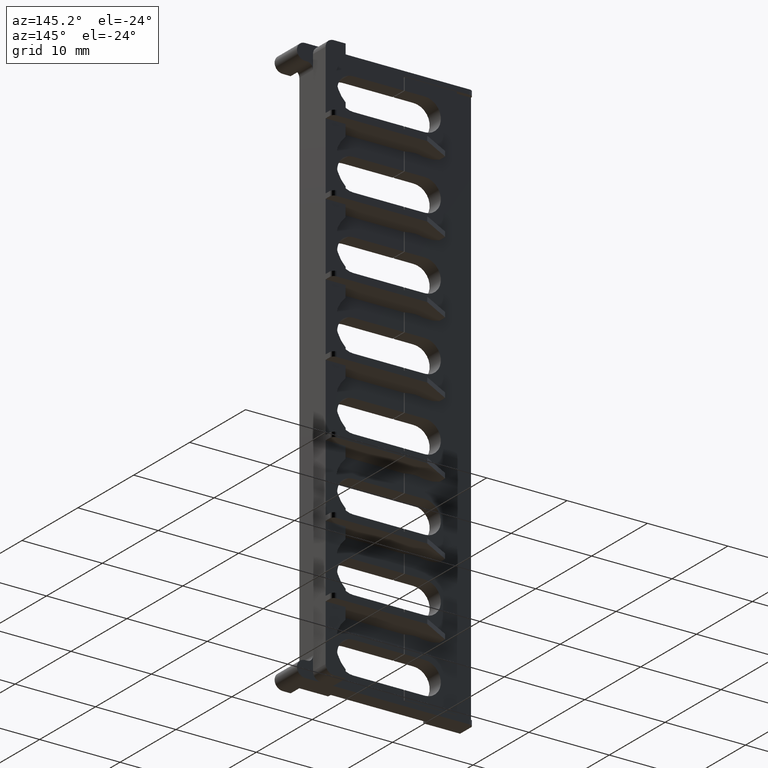
[diagram: clean part render]
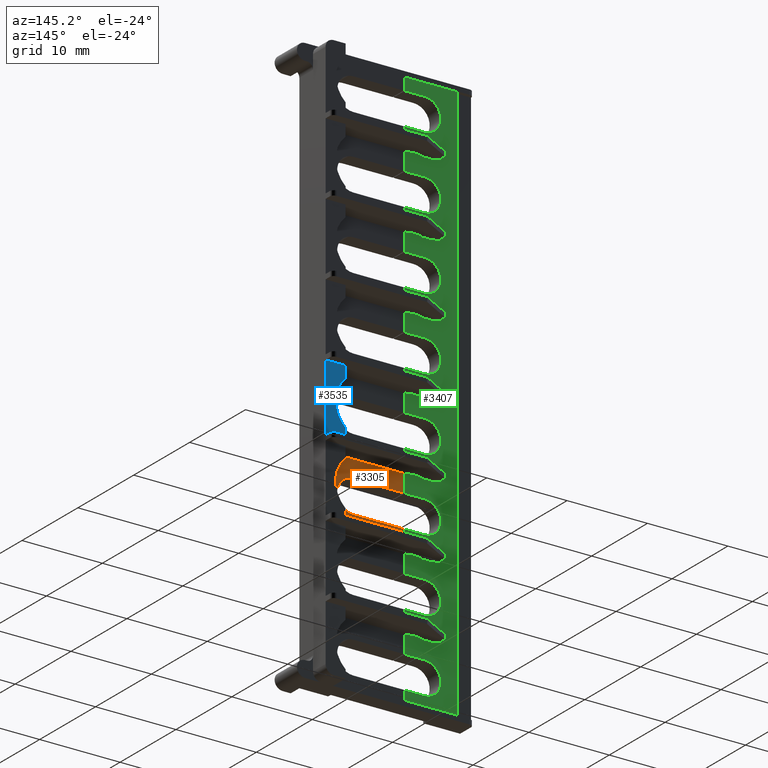
[diagram: same view with three faces highlighted in distinct colors, each labeled with its STEP entity id]
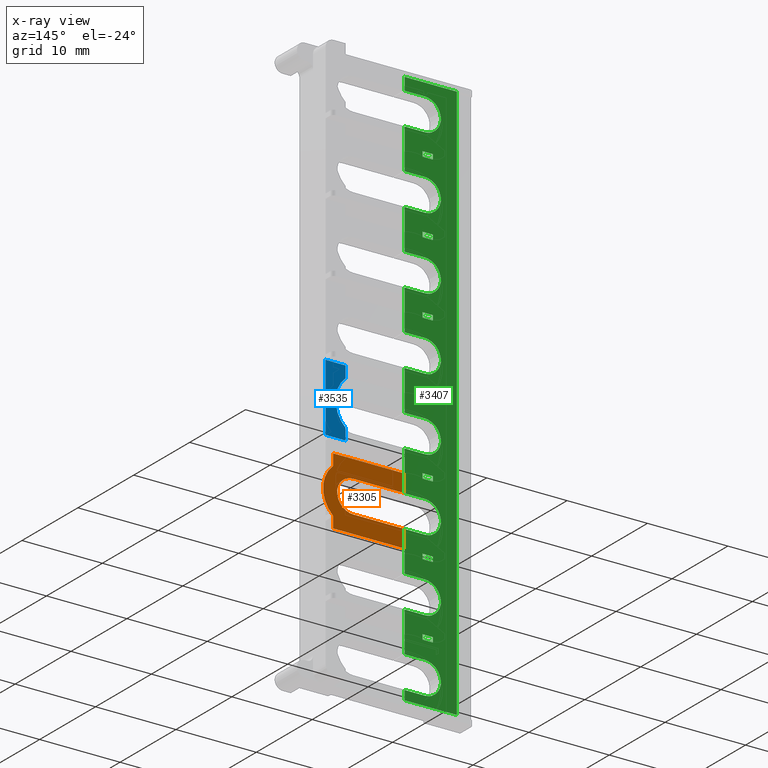
[diagram: x-ray of the same camera — body ghosted, the three highlighted faces saturated]
A machine part, auxiliary view with three faces highlighted in distinct colors.
The next image is the same camera in x-ray (body ghosted, the three faces saturated) — at least one of them is partly hidden behind the body in this view.
Their STEP definitions:

[orange] entity #3305 — the highlighted planar face has unit normal (-0, 1, -0).
#284 = AXIS2_PLACEMENT_3D ( 'NONE', #5922, #5903, #5923 ) ;
#856 = VERTEX_POINT ( 'NONE', #6675 ) ;
#1108 = DIRECTION ( 'NONE',  ( -0.0000000000000000000, -2.733577826868160200E-020, -1.000000000000000000 ) ) ;
#1123 = CARTESIAN_POINT ( 'NONE',  ( 461.6252094327940100, 146.0878730676890000, 9.600000000000056500 ) ) ;
#1200 = LINE ( 'NONE', #1123, #5444 ) ;
#1331 = LINE ( 'NONE', #1340, #5496 ) ;
#1340 = CARTESIAN_POINT ( 'NONE',  ( 452.8252094327941700, 146.0878730676890000, 49.39783776548824800 ) ) ;
#1425 = DIRECTION ( 'NONE',  ( 3.492165866658390800E-015, -0.0000000000000000000, -1.000000000000000000 ) ) ;
#1429 = LINE ( 'NONE', #1522, #5477 ) ;
#1433 = DIRECTION ( 'NONE',  ( -1.000000000000000000, 0.0000000000000000000, -3.492165866658340700E-015 ) ) ;
#1442 = LINE ( 'NONE', #1498, #5470 ) ;
#1446 = DIRECTION ( 'NONE',  ( 1.000000000000000000, 0.0000000000000000000, 0.0000000000000000000 ) ) ;
#1498 = CARTESIAN_POINT ( 'NONE',  ( 441.2545856383292200, 146.0878730676890000, 18.19999999999999900 ) ) ;
#1522 = CARTESIAN_POINT ( 'NONE',  ( 463.6252094327940100, 146.0878730676890000, 26.59999999999999800 ) ) ;
#1548 = CARTESIAN_POINT ( 'NONE',  ( 459.1252094327940100, 146.0878730676890000, 22.39999999999999900 ) ) ;
#1554 = CARTESIAN_POINT ( 'NONE',  ( 459.1252094327940100, 146.0878730676890000, 20.40000000000000200 ) ) ;
#1570 = DIRECTION ( 'NONE',  ( 2.530253133731424900E-033, -1.000000000000000000, 2.733577826868160200E-020 ) ) ;
#1574 = LINE ( 'NONE', #1554, #5538 ) ;
#1576 = CARTESIAN_POINT ( 'NONE',  ( 452.8252094327941700, 146.0878730676890000, 40.39783776548824800 ) ) ;
#1601 = DIRECTION ( 'NONE',  ( 0.0000000000000000000, 0.0000000000000000000, 1.000000000000000000 ) ) ;
#1617 = DIRECTION ( 'NONE',  ( 1.000000000000000000, -0.0000000000000000000, 3.492165866658340700E-015 ) ) ;
#1621 = LINE ( 'NONE', #1576, #5552 ) ;
#1626 = DIRECTION ( 'NONE',  ( 3.492165866658390800E-015, -0.0000000000000000000, -1.000000000000000000 ) ) ;
#1649 = LINE ( 'NONE', #1651, #5535 ) ;
#1651 = CARTESIAN_POINT ( 'NONE',  ( 450.1252094327940700, 146.0878730676890000, 24.39999999999999900 ) ) ;
#1653 = DIRECTION ( 'NONE',  ( -1.000000000000000000, -0.0000000000000000000, -3.492165866658340700E-015 ) ) ;
#1656 = CARTESIAN_POINT ( 'NONE',  ( 459.1252094327940100, 146.0878730676890000, 22.39999999999999900 ) ) ;
#1679 = DIRECTION ( 'NONE',  ( 0.0000000000000000000, 0.0000000000000000000, 1.000000000000000000 ) ) ;
#1735 = DIRECTION ( 'NONE',  ( -2.530253133731424900E-033, 1.000000000000000000, -2.733577826868160200E-020 ) ) ;
#2203 = EDGE_LOOP ( 'NONE', ( #7374, #7384, #7401, #7367, #7363, #7375, #7342, #7369, #7387, #7370 ) ) ;
#2499 = VERTEX_POINT ( 'NONE', #5803 ) ;
#2513 = VERTEX_POINT ( 'NONE', #5777 ) ;
#2515 = VERTEX_POINT ( 'NONE', #5811 ) ;
#2516 = VERTEX_POINT ( 'NONE', #5792 ) ;
#2521 = VERTEX_POINT ( 'NONE', #5817 ) ;
#2532 = VERTEX_POINT ( 'NONE', #5851 ) ;
#2540 = VERTEX_POINT ( 'NONE', #5882 ) ;
#2541 = VERTEX_POINT ( 'NONE', #5849 ) ;
#2573 = VERTEX_POINT ( 'NONE', #5860 ) ;
#2870 = LINE ( 'NONE', #2890, #5744 ) ;
#2882 = DIRECTION ( 'NONE',  ( -0.0000000000000000000, -2.733577826868160200E-020, -1.000000000000000000 ) ) ;
#2890 = CARTESIAN_POINT ( 'NONE',  ( 461.6252094327940700, 146.0878730676890000, 9.600000000000056500 ) ) ;
#3305 = ADVANCED_FACE ( 'NONE', ( #5891 ), #5888, .T. ) ;
#4196 = EDGE_CURVE ( 'NONE', #2499, #2532, #2870, .T. ) ;
#4262 = EDGE_CURVE ( 'NONE', #2521, #2513, #1200, .T. ) ;
#4291 = EDGE_CURVE ( 'NONE', #2516, #2540, #1331, .T. ) ;
#4310 = EDGE_CURVE ( 'NONE', #2521, #2516, #1429, .T. ) ;
#4317 = EDGE_CURVE ( 'NONE', #2515, #2532, #1442, .T. ) ;
#5444 = VECTOR ( 'NONE', #1108, 1000.000000000000000 ) ;
#5470 = VECTOR ( 'NONE', #1446, 1000.000000000000000 ) ;
#5477 = VECTOR ( 'NONE', #1433, 1000.000000000000000 ) ;
#5496 = VECTOR ( 'NONE', #1425, 1000.000000000000000 ) ;
#5525 = CIRCLE ( 'NONE', #5559, 1.999999999999998200 ) ;
#5535 = VECTOR ( 'NONE', #1653, 1000.000000000000000 ) ;
#5537 = CIRCLE ( 'NONE', #5556, 3.750000000000000000 ) ;
#5538 = VECTOR ( 'NONE', #1617, 1000.000000000000000 ) ;
#5552 = VECTOR ( 'NONE', #1626, 1000.000000000000000 ) ;
#5556 = AXIS2_PLACEMENT_3D ( 'NONE', #1656, #1735, #1679 ) ;
#5559 = AXIS2_PLACEMENT_3D ( 'NONE', #1548, #1570, #1601 ) ;
#5744 = VECTOR ( 'NONE', #2882, 1000.000000000000000 ) ;
#5777 = CARTESIAN_POINT ( 'NONE',  ( 461.6252094327939500, 146.0878730676890000, 25.19508497187475300 ) ) ;
#5792 = CARTESIAN_POINT ( 'NONE',  ( 452.8252094327941100, 146.0878730676890000, 26.59999999999996900 ) ) ;
#5803 = CARTESIAN_POINT ( 'NONE',  ( 461.6252094327940700, 146.0878730676890000, 19.60491502812531200 ) ) ;
#5811 = CARTESIAN_POINT ( 'NONE',  ( 452.8252094327941100, 146.0878730676890000, 18.20000000000000600 ) ) ;
#5817 = CARTESIAN_POINT ( 'NONE',  ( 461.6252094327940100, 146.0878730676890000, 26.59999999999998400 ) ) ;
#5849 = CARTESIAN_POINT ( 'NONE',  ( 452.8252094327941700, 146.0878730676890000, 20.39999999999998100 ) ) ;
#5851 = CARTESIAN_POINT ( 'NONE',  ( 461.6252094327940100, 146.0878730676890000, 18.19999999999999900 ) ) ;
#5860 = CARTESIAN_POINT ( 'NONE',  ( 459.1252094327940100, 146.0878730676890000, 20.40000000000000200 ) ) ;
#5882 = CARTESIAN_POINT ( 'NONE',  ( 452.8252094327941700, 146.0878730676890000, 24.40000000000000900 ) ) ;
#5888 = PLANE ( 'NONE',  #284 ) ;
#5891 = FACE_OUTER_BOUND ( 'NONE', #2203, .T. ) ;
#5903 = DIRECTION ( 'NONE',  ( -2.530253133731424900E-033, 1.000000000000000000, -2.733577826868160200E-020 ) ) ;
#5922 = CARTESIAN_POINT ( 'NONE',  ( 457.5799457489669600, 146.0878730676890000, 9.600000000000056500 ) ) ;
#5923 = DIRECTION ( 'NONE',  ( 0.0000000000000000000, 2.733577826868160200E-020, 1.000000000000000000 ) ) ;
#6482 = EDGE_CURVE ( 'NONE', #2573, #856, #5525, .T. ) ;
#6487 = EDGE_CURVE ( 'NONE', #2541, #2573, #1574, .T. ) ;
#6493 = EDGE_CURVE ( 'NONE', #2541, #2515, #1621, .T. ) ;
#6499 = EDGE_CURVE ( 'NONE', #2513, #2499, #5537, .T. ) ;
#6527 = EDGE_CURVE ( 'NONE', #856, #2540, #1649, .T. ) ;
#6675 = CARTESIAN_POINT ( 'NONE',  ( 459.1252094327940100, 146.0878730676890000, 24.40000000000001300 ) ) ;
#7342 = ORIENTED_EDGE ( 'NONE', *, *, #4317, .F. ) ;
#7363 = ORIENTED_EDGE ( 'NONE', *, *, #6499, .T. ) ;
#7367 = ORIENTED_EDGE ( 'NONE', *, *, #4262, .T. ) ;
#7369 = ORIENTED_EDGE ( 'NONE', *, *, #6493, .F. ) ;
#7370 = ORIENTED_EDGE ( 'NONE', *, *, #6482, .T. ) ;
#7374 = ORIENTED_EDGE ( 'NONE', *, *, #6527, .T. ) ;
#7375 = ORIENTED_EDGE ( 'NONE', *, *, #4196, .T. ) ;
#7384 = ORIENTED_EDGE ( 'NONE', *, *, #4291, .F. ) ;
#7387 = ORIENTED_EDGE ( 'NONE', *, *, #6487, .T. ) ;
#7401 = ORIENTED_EDGE ( 'NONE', *, *, #4310, .F. ) ;

[blue] entity #3535 — the highlighted planar face has unit normal (0, -1, 0).
#74 = VECTOR ( 'NONE', #8397, 1000.000000000000000 ) ;
#536 = AXIS2_PLACEMENT_3D ( 'NONE', #4740, #4726, #4721 ) ;
#664 = VECTOR ( 'NONE', #5210, 1000.000000000000000 ) ;
#679 = VECTOR ( 'NONE', #5189, 1000.000000000000000 ) ;
#702 = CIRCLE ( 'NONE', #703, 3.750000000000003600 ) ;
#703 = AXIS2_PLACEMENT_3D ( 'NONE', #7973, #7991, #7984 ) ;
#922 = VERTEX_POINT ( 'NONE', #6723 ) ;
#937 = VERTEX_POINT ( 'NONE', #6724 ) ;
#1020 = LINE ( 'NONE', #1027, #5433 ) ;
#1027 = CARTESIAN_POINT ( 'NONE',  ( 461.6252094327940100, 148.3378730676890000, 28.60491502812533700 ) ) ;
#1030 = DIRECTION ( 'NONE',  ( -3.492165866658390800E-015, -0.0000000000000000000, 1.000000000000000000 ) ) ;
#2361 = ORIENTED_EDGE ( 'NONE', *, *, #3734, .F. ) ;
#2364 = ORIENTED_EDGE ( 'NONE', *, *, #4254, .T. ) ;
#2443 = VERTEX_POINT ( 'NONE', #7018 ) ;
#2502 = VERTEX_POINT ( 'NONE', #5789 ) ;
#2518 = VERTEX_POINT ( 'NONE', #5805 ) ;
#2530 = VERTEX_POINT ( 'NONE', #5853 ) ;
#2910 = CARTESIAN_POINT ( 'NONE',  ( 461.6252094327940100, 148.3378730676890000, 37.60491502812535500 ) ) ;
#2914 = DIRECTION ( 'NONE',  ( -3.492165866658390800E-015, -0.0000000000000000000, 1.000000000000000000 ) ) ;
#2918 = LINE ( 'NONE', #2910, #5451 ) ;
#3535 = ADVANCED_FACE ( 'NONE', ( #4720 ), #4724, .F. ) ;
#3673 = EDGE_CURVE ( 'NONE', #2518, #937, #5164, .T. ) ;
#3676 = EDGE_CURVE ( 'NONE', #922, #2502, #5217, .T. ) ;
#3734 = EDGE_CURVE ( 'NONE', #2443, #2530, #702, .T. ) ;
#3859 = EDGE_CURVE ( 'NONE', #922, #937, #8374, .T. ) ;
#4217 = EDGE_CURVE ( 'NONE', #2443, #2502, #2918, .T. ) ;
#4254 = EDGE_CURVE ( 'NONE', #2518, #2530, #1020, .T. ) ;
#4720 = FACE_OUTER_BOUND ( 'NONE', #6630, .T. ) ;
#4721 = DIRECTION ( 'NONE',  ( 0.0000000000000000000, -2.733577826868160200E-020, -1.000000000000000000 ) ) ;
#4724 = PLANE ( 'NONE',  #536 ) ;
#4726 = DIRECTION ( 'NONE',  ( 2.530253133731424900E-033, -1.000000000000000000, 2.733577826868160200E-020 ) ) ;
#4740 = CARTESIAN_POINT ( 'NONE',  ( 459.1252094327940100, 148.3378730676890000, 49.39999999999999900 ) ) ;
#5164 = LINE ( 'NONE', #5221, #679 ) ;
#5189 = DIRECTION ( 'NONE',  ( 1.000000000000000000, 2.530253133731424900E-033, -6.916643862731900400E-053 ) ) ;
#5210 = DIRECTION ( 'NONE',  ( -1.000000000000000000, -2.530253133731424900E-033, 6.916643862731900400E-053 ) ) ;
#5212 = CARTESIAN_POINT ( 'NONE',  ( 459.1252094327940100, 148.3378730676890000, 35.60000000000000100 ) ) ;
#5217 = LINE ( 'NONE', #5212, #664 ) ;
#5221 = CARTESIAN_POINT ( 'NONE',  ( 459.1252094327940100, 148.3378730676890000, 27.20000000000006000 ) ) ;
#5433 = VECTOR ( 'NONE', #1030, 1000.000000000000000 ) ;
#5451 = VECTOR ( 'NONE', #2914, 1000.000000000000000 ) ;
#5789 = CARTESIAN_POINT ( 'NONE',  ( 461.6252094327940100, 148.3378730676890000, 35.60000000000000100 ) ) ;
#5805 = CARTESIAN_POINT ( 'NONE',  ( 461.6252094327940100, 148.3378730676890000, 27.20000000000003500 ) ) ;
#5853 = CARTESIAN_POINT ( 'NONE',  ( 461.6252094327940700, 148.3378730676890000, 28.60491502812527600 ) ) ;
#6630 = EDGE_LOOP ( 'NONE', ( #2364, #2361, #7095, #7098, #7097, #7096 ) ) ;
#6723 = CARTESIAN_POINT ( 'NONE',  ( 464.1252094327938900, 148.3378730676890000, 35.60000000000000100 ) ) ;
#6724 = CARTESIAN_POINT ( 'NONE',  ( 464.1252094327940100, 148.3378730676890000, 27.20000000000000300 ) ) ;
#7018 = CARTESIAN_POINT ( 'NONE',  ( 461.6252094327939500, 148.3378730676890000, 34.19508497187475600 ) ) ;
#7095 = ORIENTED_EDGE ( 'NONE', *, *, #4217, .T. ) ;
#7096 = ORIENTED_EDGE ( 'NONE', *, *, #3673, .F. ) ;
#7097 = ORIENTED_EDGE ( 'NONE', *, *, #3859, .T. ) ;
#7098 = ORIENTED_EDGE ( 'NONE', *, *, #3676, .F. ) ;
#7973 = CARTESIAN_POINT ( 'NONE',  ( 459.1252094327940100, 148.3378730676890000, 31.39999999999999900 ) ) ;
#7984 = DIRECTION ( 'NONE',  ( 0.0000000000000000000, 0.0000000000000000000, 1.000000000000000000 ) ) ;
#7991 = DIRECTION ( 'NONE',  ( -2.530253133731424900E-033, 1.000000000000000000, -2.733577826868160200E-020 ) ) ;
#8362 = CARTESIAN_POINT ( 'NONE',  ( 464.1252094327940100, 148.3378730676890000, -1.045883411433843800 ) ) ;
#8374 = LINE ( 'NONE', #8362, #74 ) ;
#8397 = DIRECTION ( 'NONE',  ( 3.492165866658390800E-015, -0.0000000000000000000, -1.000000000000000000 ) ) ;

[green] entity #3407 — the highlighted planar face has unit normal (-0, 1, -0).
#392 = AXIS2_PLACEMENT_3D ( 'NONE', #6403, #6425, #6448 ) ;
#496 = CIRCLE ( 'NONE', #506, 2.000000000000001800 ) ;
#506 = AXIS2_PLACEMENT_3D ( 'NONE', #4884, #4897, #4898 ) ;
#514 = VECTOR ( 'NONE', #4839, 1000.000000000000000 ) ;
#543 = VECTOR ( 'NONE', #4856, 1000.000000000000000 ) ;
#558 = VECTOR ( 'NONE', #5041, 1000.000000000000000 ) ;
#559 = AXIS2_PLACEMENT_3D ( 'NONE', #5023, #5025, #5031 ) ;
#560 = AXIS2_PLACEMENT_3D ( 'NONE', #5026, #5015, #5033 ) ;
#564 = VECTOR ( 'NONE', #5012, 1000.000000000000000 ) ;
#573 = VECTOR ( 'NONE', #4972, 1000.000000000000000 ) ;
#574 = CIRCLE ( 'NONE', #560, 2.000000000000000000 ) ;
#578 = VECTOR ( 'NONE', #4928, 1000.000000000000000 ) ;
#581 = AXIS2_PLACEMENT_3D ( 'NONE', #5027, #5036, #5004 ) ;
#588 = VECTOR ( 'NONE', #5045, 1000.000000000000000 ) ;
#590 = VECTOR ( 'NONE', #4910, 1000.000000000000000 ) ;
#595 = VECTOR ( 'NONE', #5021, 1000.000000000000000 ) ;
#600 = VECTOR ( 'NONE', #5081, 1000.000000000000000 ) ;
#601 = VECTOR ( 'NONE', #5001, 1000.000000000000000 ) ;
#611 = CIRCLE ( 'NONE', #581, 2.000000000000001800 ) ;
#618 = CIRCLE ( 'NONE', #559, 2.000000000000001800 ) ;
#620 = VECTOR ( 'NONE', #5195, 1000.000000000000000 ) ;
#622 = VECTOR ( 'NONE', #5193, 1000.000000000000000 ) ;
#626 = VECTOR ( 'NONE', #5094, 1000.000000000000000 ) ;
#630 = VECTOR ( 'NONE', #5218, 1000.000000000000000 ) ;
#632 = VECTOR ( 'NONE', #5078, 1000.000000000000000 ) ;
#637 = VECTOR ( 'NONE', #5082, 1000.000000000000000 ) ;
#638 = AXIS2_PLACEMENT_3D ( 'NONE', #5136, #5114, #5096 ) ;
#640 = VECTOR ( 'NONE', #5123, 1000.000000000000000 ) ;
#644 = AXIS2_PLACEMENT_3D ( 'NONE', #5135, #5133, #5106 ) ;
#646 = CIRCLE ( 'NONE', #638, 2.000000000000001800 ) ;
#647 = VECTOR ( 'NONE', #5147, 1000.000000000000000 ) ;
#653 = VECTOR ( 'NONE', #5188, 1000.000000000000000 ) ;
#654 = VECTOR ( 'NONE', #5102, 1000.000000000000000 ) ;
#655 = VECTOR ( 'NONE', #5148, 1000.000000000000000 ) ;
#662 = VECTOR ( 'NONE', #5087, 1000.000000000000000 ) ;
#666 = CIRCLE ( 'NONE', #644, 2.000000000000001800 ) ;
#668 = VECTOR ( 'NONE', #5095, 1000.000000000000000 ) ;
#669 = VECTOR ( 'NONE', #5165, 1000.000000000000000 ) ;
#672 = VECTOR ( 'NONE', #5227, 1000.000000000000000 ) ;
#674 = VECTOR ( 'NONE', #5145, 1000.000000000000000 ) ;
#675 = VECTOR ( 'NONE', #5068, 1000.000000000000000 ) ;
#676 = VECTOR ( 'NONE', #5140, 1000.000000000000000 ) ;
#682 = VECTOR ( 'NONE', #5198, 1000.000000000000000 ) ;
#688 = CIRCLE ( 'NONE', #713, 2.000000000000000000 ) ;
#690 = VECTOR ( 'NONE', #7922, 1000.000000000000000 ) ;
#692 = VECTOR ( 'NONE', #7921, 1000.000000000000000 ) ;
#699 = VECTOR ( 'NONE', #7925, 1000.000000000000000 ) ;
#712 = VECTOR ( 'NONE', #7963, 1000.000000000000000 ) ;
#713 = AXIS2_PLACEMENT_3D ( 'NONE', #7899, #7881, #7898 ) ;
#715 = CIRCLE ( 'NONE', #745, 1.999999999999998200 ) ;
#724 = VECTOR ( 'NONE', #7937, 1000.000000000000000 ) ;
#731 = VECTOR ( 'NONE', #7965, 1000.000000000000000 ) ;
#745 = AXIS2_PLACEMENT_3D ( 'NONE', #7872, #7885, #7902 ) ;
#837 = VERTEX_POINT ( 'NONE', #6663 ) ;
#838 = VERTEX_POINT ( 'NONE', #6694 ) ;
#842 = VERTEX_POINT ( 'NONE', #6676 ) ;
#847 = VERTEX_POINT ( 'NONE', #6705 ) ;
#866 = VERTEX_POINT ( 'NONE', #6655 ) ;
#870 = VERTEX_POINT ( 'NONE', #6671 ) ;
#875 = VERTEX_POINT ( 'NONE', #6680 ) ;
#887 = VERTEX_POINT ( 'NONE', #6697 ) ;
#889 = VERTEX_POINT ( 'NONE', #6700 ) ;
#890 = VERTEX_POINT ( 'NONE', #6702 ) ;
#893 = VERTEX_POINT ( 'NONE', #6773 ) ;
#894 = VERTEX_POINT ( 'NONE', #6755 ) ;
#899 = VERTEX_POINT ( 'NONE', #6786 ) ;
#903 = VERTEX_POINT ( 'NONE', #6789 ) ;
#908 = VERTEX_POINT ( 'NONE', #6728 ) ;
#911 = VERTEX_POINT ( 'NONE', #6781 ) ;
#917 = VERTEX_POINT ( 'NONE', #6783 ) ;
#918 = VERTEX_POINT ( 'NONE', #6778 ) ;
#925 = VERTEX_POINT ( 'NONE', #6733 ) ;
#931 = VERTEX_POINT ( 'NONE', #6779 ) ;
#947 = VERTEX_POINT ( 'NONE', #6748 ) ;
#948 = VERTEX_POINT ( 'NONE', #6751 ) ;
#949 = VERTEX_POINT ( 'NONE', #6758 ) ;
#1006 = LINE ( 'NONE', #1088, #5453 ) ;
#1073 = DIRECTION ( 'NONE',  ( 0.0000000000000000000, 2.733577826868160200E-020, 1.000000000000000000 ) ) ;
#1088 = CARTESIAN_POINT ( 'NONE',  ( 450.4891510183760500, 146.0878730676890000, 4.400000000000000400 ) ) ;
#1233 = LINE ( 'NONE', #1236, #5482 ) ;
#1236 = CARTESIAN_POINT ( 'NONE',  ( 449.2314272154430900, 146.0878730676890000, 4.400000000000000400 ) ) ;
#1244 = DIRECTION ( 'NONE',  ( -0.0000000000000000000, -2.733577826868160200E-020, -1.000000000000000000 ) ) ;
#1255 = CARTESIAN_POINT ( 'NONE',  ( 452.7252094327938000, 146.0878730676890000, 4.400000000000000400 ) ) ;
#1266 = LINE ( 'NONE', #1284, #5509 ) ;
#1272 = DIRECTION ( 'NONE',  ( -0.0000000000000000000, -2.733577826868160200E-020, -1.000000000000000000 ) ) ;
#1284 = CARTESIAN_POINT ( 'NONE',  ( 449.2314272154432600, 146.0878730676890000, 4.400000000000000400 ) ) ;
#1286 = LINE ( 'NONE', #1255, #5515 ) ;
#1309 = DIRECTION ( 'NONE',  ( -0.0000000000000000000, -2.733577826868160200E-020, -1.000000000000000000 ) ) ;
#1320 = LINE ( 'NONE', #1361, #5467 ) ;
#1349 = DIRECTION ( 'NONE',  ( 0.0000000000000000000, 2.733577826868160200E-020, 1.000000000000000000 ) ) ;
#1361 = CARTESIAN_POINT ( 'NONE',  ( 450.4891510183760500, 146.0878730676890000, 4.400000000000000400 ) ) ;
#1369 = CARTESIAN_POINT ( 'NONE',  ( 446.2252094327940300, 146.0878730676890000, 4.400000000000000400 ) ) ;
#1384 = LINE ( 'NONE', #1369, #5502 ) ;
#1412 = DIRECTION ( 'NONE',  ( 0.0000000000000000000, 2.733577826868160200E-020, 1.000000000000000000 ) ) ;
#1454 = LINE ( 'NONE', #1494, #5476 ) ;
#1458 = DIRECTION ( 'NONE',  ( 0.0000000000000000000, 2.733577826868160200E-020, 1.000000000000000000 ) ) ;
#1494 = CARTESIAN_POINT ( 'NONE',  ( 450.4891510183760500, 146.0878730676890000, 4.400000000000000400 ) ) ;
#1596 = DIRECTION ( 'NONE',  ( -0.0000000000000000000, -2.733577826868160200E-020, -1.000000000000000000 ) ) ;
#1605 = LINE ( 'NONE', #1635, #5528 ) ;
#1635 = CARTESIAN_POINT ( 'NONE',  ( 452.7252094327940300, 146.0878730676890000, 4.400000000000000400 ) ) ;
#1694 = CARTESIAN_POINT ( 'NONE',  ( 452.7252094327940300, 146.0878730676890000, 4.400000000000000400 ) ) ;
#1730 = LINE ( 'NONE', #1694, #5557 ) ;
#1744 = DIRECTION ( 'NONE',  ( -0.0000000000000000000, -2.733577826868160200E-020, -1.000000000000000000 ) ) ;
#1971 = DIRECTION ( 'NONE',  ( -0.0000000000000000000, -2.733577826868160200E-020, -1.000000000000000000 ) ) ;
#1975 = LINE ( 'NONE', #2000, #5429 ) ;
#2000 = CARTESIAN_POINT ( 'NONE',  ( 449.2314272154432600, 146.0878730676890000, 4.400000000000000400 ) ) ;
#2099 = EDGE_LOOP ( 'NONE', ( #7532, #7505, #7524, #7492 ) ) ;
#2184 = EDGE_LOOP ( 'NONE', ( #7518, #7434, #7504, #7501 ) ) ;
#2194 = EDGE_LOOP ( 'NONE', ( #7394, #7450, #7474, #7476, #7431, #7470, #7445, #7398, #7420, #7404, #7358, #7449, #7472, #7529, #7534, #7489, #7481, #7436, #7442, #7429, #7485, #7533, #7502, #7435, #7526, #7426, #7537, #7493, #7522, #7500, #7494, #7543, #7490, #7440, #7520, #7525 ) ) ;
#2199 = EDGE_LOOP ( 'NONE', ( #7456, #7487, #7516, #7428 ) ) ;
#2201 = EDGE_LOOP ( 'NONE', ( #7503, #7446, #7517, #7491 ) ) ;
#2206 = EDGE_LOOP ( 'NONE', ( #7544, #7530, #7521, #7513 ) ) ;
#2211 = EDGE_LOOP ( 'NONE', ( #7535, #7486, #7539, #7506 ) ) ;
#2216 = EDGE_LOOP ( 'NONE', ( #7421, #7495, #7439, #7510 ) ) ;
#2352 = VERTEX_POINT ( 'NONE', #6956 ) ;
#2386 = VERTEX_POINT ( 'NONE', #6925 ) ;
#2415 = VERTEX_POINT ( 'NONE', #6999 ) ;
#2419 = VERTEX_POINT ( 'NONE', #6998 ) ;
#2421 = VERTEX_POINT ( 'NONE', #7022 ) ;
#2427 = VERTEX_POINT ( 'NONE', #7010 ) ;
#2429 = VERTEX_POINT ( 'NONE', #7041 ) ;
#2436 = VERTEX_POINT ( 'NONE', #7012 ) ;
#2437 = VERTEX_POINT ( 'NONE', #7044 ) ;
#2439 = VERTEX_POINT ( 'NONE', #7031 ) ;
#2445 = VERTEX_POINT ( 'NONE', #7019 ) ;
#2459 = VERTEX_POINT ( 'NONE', #6987 ) ;
#2462 = VERTEX_POINT ( 'NONE', #6992 ) ;
#2464 = VERTEX_POINT ( 'NONE', #6994 ) ;
#2469 = VERTEX_POINT ( 'NONE', #5781 ) ;
#2476 = VERTEX_POINT ( 'NONE', #5774 ) ;
#2481 = VERTEX_POINT ( 'NONE', #5763 ) ;
#2494 = VERTEX_POINT ( 'NONE', #5816 ) ;
#2500 = VERTEX_POINT ( 'NONE', #5812 ) ;
#2501 = VERTEX_POINT ( 'NONE', #5810 ) ;
#2517 = VERTEX_POINT ( 'NONE', #5762 ) ;
#2519 = VERTEX_POINT ( 'NONE', #5806 ) ;
#2525 = VERTEX_POINT ( 'NONE', #5794 ) ;
#2527 = VERTEX_POINT ( 'NONE', #5779 ) ;
#2529 = VERTEX_POINT ( 'NONE', #5796 ) ;
#2542 = VERTEX_POINT ( 'NONE', #5833 ) ;
#2549 = VERTEX_POINT ( 'NONE', #5862 ) ;
#2551 = VERTEX_POINT ( 'NONE', #5871 ) ;
#2556 = VERTEX_POINT ( 'NONE', #5881 ) ;
#2557 = VERTEX_POINT ( 'NONE', #5826 ) ;
#2559 = VERTEX_POINT ( 'NONE', #5879 ) ;
#2561 = VERTEX_POINT ( 'NONE', #5827 ) ;
#2567 = VERTEX_POINT ( 'NONE', #5843 ) ;
#2570 = VERTEX_POINT ( 'NONE', #5874 ) ;
#2574 = VERTEX_POINT ( 'NONE', #5828 ) ;
#2576 = VERTEX_POINT ( 'NONE', #5858 ) ;
#2579 = VERTEX_POINT ( 'NONE', #5838 ) ;
#2584 = VERTEX_POINT ( 'NONE', #5845 ) ;
#2585 = VERTEX_POINT ( 'NONE', #5873 ) ;
#2588 = VERTEX_POINT ( 'NONE', #5864 ) ;
#2590 = VERTEX_POINT ( 'NONE', #5847 ) ;
#2729 = LINE ( 'NONE', #2767, #5682 ) ;
#2767 = CARTESIAN_POINT ( 'NONE',  ( 450.4891510183760500, 146.0878730676890000, 4.400000000000000400 ) ) ;
#2778 = CARTESIAN_POINT ( 'NONE',  ( 450.4891510183760500, 146.0878730676890000, 4.400000000000000400 ) ) ;
#2787 = LINE ( 'NONE', #2778, #5726 ) ;
#2793 = DIRECTION ( 'NONE',  ( 0.0000000000000000000, 2.733577826868160200E-020, 1.000000000000000000 ) ) ;
#2800 = DIRECTION ( 'NONE',  ( 0.0000000000000000000, 2.733577826868160200E-020, 1.000000000000000000 ) ) ;
#2813 = CARTESIAN_POINT ( 'NONE',  ( 449.2314272154433200, 146.0878730676890000, 4.400000000000000400 ) ) ;
#2816 = DIRECTION ( 'NONE',  ( -0.0000000000000000000, -2.733577826868160200E-020, -1.000000000000000000 ) ) ;
#2825 = LINE ( 'NONE', #2813, #5739 ) ;
#2830 = DIRECTION ( 'NONE',  ( -0.0000000000000000000, -2.733577826868160200E-020, -1.000000000000000000 ) ) ;
#2847 = LINE ( 'NONE', #2850, #5716 ) ;
#2850 = CARTESIAN_POINT ( 'NONE',  ( 449.2314272154432600, 146.0878730676890000, 4.400000000000000400 ) ) ;
#2851 = DIRECTION ( 'NONE',  ( -0.0000000000000000000, -2.733577826868160200E-020, -1.000000000000000000 ) ) ;
#2854 = LINE ( 'NONE', #2855, #5728 ) ;
#2855 = CARTESIAN_POINT ( 'NONE',  ( 449.2314272154432600, 146.0878730676890000, 4.400000000000000400 ) ) ;
#2908 = CARTESIAN_POINT ( 'NONE',  ( 449.2314272154432600, 146.0878730676890000, 4.400000000000000400 ) ) ;
#2915 = LINE ( 'NONE', #2908, #5733 ) ;
#2931 = DIRECTION ( 'NONE',  ( -0.0000000000000000000, -2.733577826868160200E-020, -1.000000000000000000 ) ) ;
#2963 = DIRECTION ( 'NONE',  ( 0.0000000000000000000, 2.733577826868160200E-020, 1.000000000000000000 ) ) ;
#2964 = LINE ( 'NONE', #3017, #5428 ) ;
#2983 = LINE ( 'NONE', #2984, #5401 ) ;
#2984 = CARTESIAN_POINT ( 'NONE',  ( 450.4891510183761100, 146.0878730676890000, 4.400000000000000400 ) ) ;
#3017 = CARTESIAN_POINT ( 'NONE',  ( 450.4891510183760500, 146.0878730676890000, 4.400000000000000400 ) ) ;
#3122 = DIRECTION ( 'NONE',  ( -0.0000000000000000000, -2.733577826868160200E-020, -1.000000000000000000 ) ) ;
#3157 = CARTESIAN_POINT ( 'NONE',  ( 452.7252094327938000, 146.0878730676890000, 4.400000000000000400 ) ) ;
#3164 = LINE ( 'NONE', #3157, #5575 ) ;
#3176 = LINE ( 'NONE', #3183, #5621 ) ;
#3183 = CARTESIAN_POINT ( 'NONE',  ( 452.7252094327940300, 146.0878730676890000, 4.400000000000000400 ) ) ;
#3196 = DIRECTION ( 'NONE',  ( 0.0000000000000000000, 2.733577826868160200E-020, 1.000000000000000000 ) ) ;
#3217 = DIRECTION ( 'NONE',  ( -0.0000000000000000000, -2.733577826868160200E-020, -1.000000000000000000 ) ) ;
#3407 = ADVANCED_FACE ( 'NONE', ( #6457, #6434, #6413, #6416, #6428, #6414, #6430, #6456 ), #6435, .T. ) ;
#3567 = EDGE_CURVE ( 'NONE', #2352, #949, #4834, .T. ) ;
#3575 = EDGE_CURVE ( 'NONE', #949, #875, #496, .T. ) ;
#3576 = EDGE_CURVE ( 'NONE', #875, #842, #4892, .T. ) ;
#3585 = EDGE_CURVE ( 'NONE', #2579, #866, #4901, .T. ) ;
#3586 = EDGE_CURVE ( 'NONE', #2570, #908, #4933, .T. ) ;
#3604 = EDGE_CURVE ( 'NONE', #2445, #2462, #4956, .T. ) ;
#3610 = EDGE_CURVE ( 'NONE', #847, #948, #5016, .T. ) ;
#3614 = EDGE_CURVE ( 'NONE', #911, #917, #611, .T. ) ;
#3615 = EDGE_CURVE ( 'NONE', #2590, #2527, #5035, .T. ) ;
#3620 = EDGE_CURVE ( 'NONE', #889, #887, #618, .T. ) ;
#3621 = EDGE_CURVE ( 'NONE', #2476, #2517, #5013, .T. ) ;
#3622 = EDGE_CURVE ( 'NONE', #899, #925, #574, .T. ) ;
#3623 = EDGE_CURVE ( 'NONE', #917, #2579, #5002, .T. ) ;
#3628 = EDGE_CURVE ( 'NONE', #894, #870, #5066, .T. ) ;
#3629 = EDGE_CURVE ( 'NONE', #866, #838, #5088, .T. ) ;
#3636 = EDGE_CURVE ( 'NONE', #2559, #2519, #5059, .T. ) ;
#3637 = EDGE_CURVE ( 'NONE', #870, #911, #5067, .T. ) ;
#3638 = EDGE_CURVE ( 'NONE', #903, #2556, #5053, .T. ) ;
#3639 = EDGE_CURVE ( 'NONE', #2585, #2584, #5077, .T. ) ;
#3640 = EDGE_CURVE ( 'NONE', #2561, #2576, #5052, .T. ) ;
#3642 = EDGE_CURVE ( 'NONE', #925, #2386, #5099, .T. ) ;
#3645 = EDGE_CURVE ( 'NONE', #947, #931, #666, .T. ) ;
#3646 = EDGE_CURVE ( 'NONE', #2551, #899, #5115, .T. ) ;
#3649 = EDGE_CURVE ( 'NONE', #948, #890, #646, .T. ) ;
#3653 = EDGE_CURVE ( 'NONE', #2501, #2529, #5134, .T. ) ;
#3655 = EDGE_CURVE ( 'NONE', #893, #918, #5120, .T. ) ;
#3657 = EDGE_CURVE ( 'NONE', #2500, #2494, #5154, .T. ) ;
#3659 = EDGE_CURVE ( 'NONE', #2429, #889, #5153, .T. ) ;
#3663 = EDGE_CURVE ( 'NONE', #2439, #2459, #5139, .T. ) ;
#3665 = EDGE_CURVE ( 'NONE', #931, #894, #5151, .T. ) ;
#3672 = EDGE_CURVE ( 'NONE', #887, #2557, #5204, .T. ) ;
#3677 = EDGE_CURVE ( 'NONE', #2542, #2421, #5225, .T. ) ;
#3678 = EDGE_CURVE ( 'NONE', #837, #2574, #5211, .T. ) ;
#3679 = EDGE_CURVE ( 'NONE', #2464, #2415, #5182, .T. ) ;
#3680 = EDGE_CURVE ( 'NONE', #908, #947, #5192, .T. ) ;
#3681 = EDGE_CURVE ( 'NONE', #2588, #2549, #5184, .T. ) ;
#3695 = EDGE_CURVE ( 'NONE', #918, #837, #688, .T. ) ;
#3704 = EDGE_CURVE ( 'NONE', #838, #903, #715, .T. ) ;
#3714 = EDGE_CURVE ( 'NONE', #2481, #2469, #7929, .T. ) ;
#3718 = EDGE_CURVE ( 'NONE', #2567, #2525, #7916, .T. ) ;
#3719 = EDGE_CURVE ( 'NONE', #2419, #2437, #7923, .T. ) ;
#3721 = EDGE_CURVE ( 'NONE', #842, #847, #7914, .T. ) ;
#3724 = EDGE_CURVE ( 'NONE', #2436, #2427, #7974, .T. ) ;
#3728 = EDGE_CURVE ( 'NONE', #890, #2570, #7993, .T. ) ;
#4045 = EDGE_CURVE ( 'NONE', #2429, #2352, #3164, .T. ) ;
#4072 = EDGE_CURVE ( 'NONE', #2386, #2421, #3176, .T. ) ;
#4160 = EDGE_CURVE ( 'NONE', #2439, #2462, #2729, .T. ) ;
#4170 = EDGE_CURVE ( 'NONE', #2469, #2415, #2787, .T. ) ;
#4178 = EDGE_CURVE ( 'NONE', #2464, #2481, #2825, .T. ) ;
#4181 = EDGE_CURVE ( 'NONE', #2445, #2459, #2847, .T. ) ;
#4183 = EDGE_CURVE ( 'NONE', #2419, #2436, #2854, .T. ) ;
#4212 = EDGE_CURVE ( 'NONE', #2559, #2567, #2915, .T. ) ;
#4220 = EDGE_CURVE ( 'NONE', #2525, #2519, #2983, .T. ) ;
#4232 = EDGE_CURVE ( 'NONE', #2476, #2529, #2964, .T. ) ;
#4239 = EDGE_CURVE ( 'NONE', #2501, #2517, #1975, .T. ) ;
#4249 = EDGE_CURVE ( 'NONE', #2427, #2437, #1006, .T. ) ;
#4276 = EDGE_CURVE ( 'NONE', #2590, #2557, #1286, .T. ) ;
#4286 = EDGE_CURVE ( 'NONE', #2500, #2549, #1266, .T. ) ;
#4288 = EDGE_CURVE ( 'NONE', #2561, #2584, #1233, .T. ) ;
#4294 = EDGE_CURVE ( 'NONE', #2588, #2494, #1320, .T. ) ;
#4302 = EDGE_CURVE ( 'NONE', #2542, #2527, #1384, .T. ) ;
#4316 = EDGE_CURVE ( 'NONE', #2585, #2576, #1454, .T. ) ;
#4803 = CARTESIAN_POINT ( 'NONE',  ( 450.2252094327940300, 146.0878730676890000, 60.40000000000000600 ) ) ;
#4834 = LINE ( 'NONE', #4803, #514 ) ;
#4839 = DIRECTION ( 'NONE',  ( -1.000000000000000000, -0.0000000000000000000, -3.492165866658340700E-015 ) ) ;
#4854 = CARTESIAN_POINT ( 'NONE',  ( 450.2252094327940300, 146.0878730676890000, 56.39999999999999900 ) ) ;
#4856 = DIRECTION ( 'NONE',  ( 1.000000000000000000, -0.0000000000000000000, 3.492165866658340700E-015 ) ) ;
#4884 = CARTESIAN_POINT ( 'NONE',  ( 450.2252094327940300, 146.0878730676890000, 58.39999999999999900 ) ) ;
#4892 = LINE ( 'NONE', #4854, #543 ) ;
#4897 = DIRECTION ( 'NONE',  ( 2.530253133731424900E-033, -1.000000000000000000, 2.733577826868160200E-020 ) ) ;
#4898 = DIRECTION ( 'NONE',  ( 0.0000000000000000000, 0.0000000000000000000, -1.000000000000000000 ) ) ;
#4901 = LINE ( 'NONE', #4912, #590 ) ;
#4910 = DIRECTION ( 'NONE',  ( -0.0000000000000000000, -2.733577826868160200E-020, -1.000000000000000000 ) ) ;
#4912 = CARTESIAN_POINT ( 'NONE',  ( 452.7252094327940300, 146.0878730676890000, 4.400000000000000400 ) ) ;
#4923 = CARTESIAN_POINT ( 'NONE',  ( 452.7252094327940300, 146.0878730676890000, 4.400000000000000400 ) ) ;
#4928 = DIRECTION ( 'NONE',  ( -0.0000000000000000000, -2.733577826868160200E-020, -1.000000000000000000 ) ) ;
#4933 = LINE ( 'NONE', #4923, #578 ) ;
#4956 = LINE ( 'NONE', #4958, #573 ) ;
#4958 = CARTESIAN_POINT ( 'NONE',  ( 441.2545856383292200, 146.0878730676890000, 54.19999999999999600 ) ) ;
#4972 = DIRECTION ( 'NONE',  ( 1.000000000000000000, 0.0000000000000000000, 0.0000000000000000000 ) ) ;
#5001 = DIRECTION ( 'NONE',  ( -1.000000000000000000, -0.0000000000000000000, -3.492165866658340700E-015 ) ) ;
#5002 = LINE ( 'NONE', #5017, #595 ) ;
#5004 = DIRECTION ( 'NONE',  ( 0.0000000000000000000, 0.0000000000000000000, -1.000000000000000000 ) ) ;
#5009 = CARTESIAN_POINT ( 'NONE',  ( 446.2252094327937500, 146.0878730676890000, 70.95000000000006000 ) ) ;
#5012 = DIRECTION ( 'NONE',  ( -1.000000000000000000, -0.0000000000000000000, -3.492165866658340700E-015 ) ) ;
#5013 = LINE ( 'NONE', #5040, #558 ) ;
#5015 = DIRECTION ( 'NONE',  ( 2.530253133731424900E-033, -1.000000000000000000, 2.733577826868160200E-020 ) ) ;
#5016 = LINE ( 'NONE', #5019, #564 ) ;
#5017 = CARTESIAN_POINT ( 'NONE',  ( 450.2252094327940300, 146.0878730676890000, 29.39999999999999900 ) ) ;
#5019 = CARTESIAN_POINT ( 'NONE',  ( 450.2252094327940300, 146.0878730676890000, 51.39999999999999900 ) ) ;
#5021 = DIRECTION ( 'NONE',  ( 1.000000000000000000, -0.0000000000000000000, 3.492165866658340700E-015 ) ) ;
#5023 = CARTESIAN_POINT ( 'NONE',  ( 450.2252094327942000, 146.0878730676890000, 67.40000000000000600 ) ) ;
#5025 = DIRECTION ( 'NONE',  ( -2.530253133731424900E-033, 1.000000000000000000, 2.733577826868160200E-020 ) ) ;
#5026 = CARTESIAN_POINT ( 'NONE',  ( 450.2252094327940300, 146.0878730676890000, 4.400000000000000400 ) ) ;
#5027 = CARTESIAN_POINT ( 'NONE',  ( 450.2252094327940300, 146.0878730676890000, 31.39999999999999900 ) ) ;
#5031 = DIRECTION ( 'NONE',  ( 0.0000000000000000000, 0.0000000000000000000, 1.000000000000000000 ) ) ;
#5033 = DIRECTION ( 'NONE',  ( 0.0000000000000000000, 0.0000000000000000000, -1.000000000000000000 ) ) ;
#5035 = LINE ( 'NONE', #5009, #601 ) ;
#5036 = DIRECTION ( 'NONE',  ( 2.530253133731424900E-033, -1.000000000000000000, 2.733577826868160200E-020 ) ) ;
#5040 = CARTESIAN_POINT ( 'NONE',  ( 463.6252094327940100, 146.0878730676890000, 26.59999999999999800 ) ) ;
#5041 = DIRECTION ( 'NONE',  ( -1.000000000000000000, 0.0000000000000000000, -3.492165866658340700E-015 ) ) ;
#5045 = DIRECTION ( 'NONE',  ( -1.000000000000000000, -0.0000000000000000000, -3.492165866658340700E-015 ) ) ;
#5052 = LINE ( 'NONE', #5116, #640 ) ;
#5053 = LINE ( 'NONE', #5079, #637 ) ;
#5056 = CARTESIAN_POINT ( 'NONE',  ( 450.2252094327940300, 146.0878730676890000, 33.39999999999999900 ) ) ;
#5059 = LINE ( 'NONE', #5064, #662 ) ;
#5064 = CARTESIAN_POINT ( 'NONE',  ( 441.2545856383292200, 146.0878730676890000, 18.19999999999999900 ) ) ;
#5065 = CARTESIAN_POINT ( 'NONE',  ( 463.6252094327940100, 146.0878730676890000, 62.60000000000000100 ) ) ;
#5066 = LINE ( 'NONE', #5072, #600 ) ;
#5067 = LINE ( 'NONE', #5056, #675 ) ;
#5068 = DIRECTION ( 'NONE',  ( -1.000000000000000000, -0.0000000000000000000, -3.492165866658340700E-015 ) ) ;
#5070 = CARTESIAN_POINT ( 'NONE',  ( 450.2252094327940300, 146.0878730676890000, 24.39999999999999900 ) ) ;
#5072 = CARTESIAN_POINT ( 'NONE',  ( 452.7252094327940300, 146.0878730676890000, 4.400000000000000400 ) ) ;
#5077 = LINE ( 'NONE', #5065, #632 ) ;
#5078 = DIRECTION ( 'NONE',  ( -1.000000000000000000, 0.0000000000000000000, -3.492165866658340700E-015 ) ) ;
#5079 = CARTESIAN_POINT ( 'NONE',  ( 450.2252094327940300, 146.0878730676890000, 20.40000000000000200 ) ) ;
#5081 = DIRECTION ( 'NONE',  ( -0.0000000000000000000, -2.733577826868160200E-020, -1.000000000000000000 ) ) ;
#5082 = DIRECTION ( 'NONE',  ( 1.000000000000000000, -0.0000000000000000000, 3.492165866658340700E-015 ) ) ;
#5087 = DIRECTION ( 'NONE',  ( 1.000000000000000000, 0.0000000000000000000, 0.0000000000000000000 ) ) ;
#5088 = LINE ( 'NONE', #5070, #588 ) ;
#5094 = DIRECTION ( 'NONE',  ( 1.000000000000000000, -0.0000000000000000000, 3.492165866658340700E-015 ) ) ;
#5095 = DIRECTION ( 'NONE',  ( -1.000000000000000000, -0.0000000000000000000, -3.492165866658340700E-015 ) ) ;
#5096 = DIRECTION ( 'NONE',  ( 0.0000000000000000000, 0.0000000000000000000, -1.000000000000000000 ) ) ;
#5099 = LINE ( 'NONE', #5121, #626 ) ;
#5100 = CARTESIAN_POINT ( 'NONE',  ( 441.2545856383292200, 146.0878730676890000, 27.20000000000000300 ) ) ;
#5102 = DIRECTION ( 'NONE',  ( 1.000000000000000000, 0.0000000000000000000, 0.0000000000000000000 ) ) ;
#5106 = DIRECTION ( 'NONE',  ( 0.0000000000000000000, 0.0000000000000000000, -1.000000000000000000 ) ) ;
#5111 = CARTESIAN_POINT ( 'NONE',  ( 450.2252094327940300, 146.0878730676890000, 6.400000000000000400 ) ) ;
#5114 = DIRECTION ( 'NONE',  ( 2.530253133731424900E-033, -1.000000000000000000, 2.733577826868160200E-020 ) ) ;
#5115 = LINE ( 'NONE', #5111, #668 ) ;
#5116 = CARTESIAN_POINT ( 'NONE',  ( 441.2545856383292200, 146.0878730676890300, 63.20000000000000300 ) ) ;
#5120 = LINE ( 'NONE', #5130, #647 ) ;
#5121 = CARTESIAN_POINT ( 'NONE',  ( 450.2252094327940300, 146.0878730676890000, 2.400000000000024800 ) ) ;
#5123 = DIRECTION ( 'NONE',  ( 1.000000000000000000, 0.0000000000000000000, 0.0000000000000000000 ) ) ;
#5130 = CARTESIAN_POINT ( 'NONE',  ( 450.2252094327940300, 146.0878730676890000, 15.40000000000000000 ) ) ;
#5133 = DIRECTION ( 'NONE',  ( 2.530253133731424900E-033, -1.000000000000000000, 2.733577826868160200E-020 ) ) ;
#5134 = LINE ( 'NONE', #5100, #654 ) ;
#5135 = CARTESIAN_POINT ( 'NONE',  ( 450.2252094327940300, 146.0878730676890000, 40.39999999999999900 ) ) ;
#5136 = CARTESIAN_POINT ( 'NONE',  ( 450.2252094327940300, 146.0878730676890000, 49.39999999999999900 ) ) ;
#5139 = LINE ( 'NONE', #5152, #655 ) ;
#5140 = DIRECTION ( 'NONE',  ( 1.000000000000000000, -0.0000000000000000000, 3.492165866658340700E-015 ) ) ;
#5145 = DIRECTION ( 'NONE',  ( -1.000000000000000000, -0.0000000000000000000, -0.0000000000000000000 ) ) ;
#5147 = DIRECTION ( 'NONE',  ( -1.000000000000000000, -0.0000000000000000000, -3.492165866658340700E-015 ) ) ;
#5148 = DIRECTION ( 'NONE',  ( -1.000000000000000000, 0.0000000000000000000, -3.492165866658340700E-015 ) ) ;
#5151 = LINE ( 'NONE', #5170, #676 ) ;
#5152 = CARTESIAN_POINT ( 'NONE',  ( 463.6252094327940100, 146.0878730676890000, 53.59999999999999400 ) ) ;
#5153 = LINE ( 'NONE', #5174, #674 ) ;
#5154 = LINE ( 'NONE', #5176, #669 ) ;
#5165 = DIRECTION ( 'NONE',  ( 1.000000000000000000, 0.0000000000000000000, 3.492165866658340700E-015 ) ) ;
#5170 = CARTESIAN_POINT ( 'NONE',  ( 450.2252094327940300, 146.0878730676890000, 38.39999999999999900 ) ) ;
#5174 = CARTESIAN_POINT ( 'NONE',  ( 450.2252094327941400, 146.0878730676890000, 65.40000000000000600 ) ) ;
#5176 = CARTESIAN_POINT ( 'NONE',  ( 463.6252094327940100, 146.0878730676890000, 9.200000000000109400 ) ) ;
#5182 = LINE ( 'NONE', #5187, #630 ) ;
#5184 = LINE ( 'NONE', #5226, #622 ) ;
#5187 = CARTESIAN_POINT ( 'NONE',  ( 441.2545856383292200, 146.0878730676890000, 45.19999999999999600 ) ) ;
#5188 = DIRECTION ( 'NONE',  ( 1.000000000000000000, 0.0000000000000000000, 0.0000000000000000000 ) ) ;
#5192 = LINE ( 'NONE', #5219, #672 ) ;
#5193 = DIRECTION ( 'NONE',  ( -1.000000000000000000, 0.0000000000000000000, -3.492165866658340700E-015 ) ) ;
#5195 = DIRECTION ( 'NONE',  ( 1.000000000000000000, -0.0000000000000000000, 3.492165866658340700E-015 ) ) ;
#5198 = DIRECTION ( 'NONE',  ( 1.000000000000000000, -0.0000000000000000000, 3.492165866658340700E-015 ) ) ;
#5204 = LINE ( 'NONE', #5208, #653 ) ;
#5205 = CARTESIAN_POINT ( 'NONE',  ( 446.2252094327940300, 146.0878730676890000, 1.250000000000042600 ) ) ;
#5206 = CARTESIAN_POINT ( 'NONE',  ( 450.2252094327940300, 146.0878730676890000, 11.40000000000000000 ) ) ;
#5208 = CARTESIAN_POINT ( 'NONE',  ( 450.2252094327941400, 146.0878730676890000, 69.40000000000000600 ) ) ;
#5211 = LINE ( 'NONE', #5206, #620 ) ;
#5218 = DIRECTION ( 'NONE',  ( 1.000000000000000000, 0.0000000000000000000, 0.0000000000000000000 ) ) ;
#5219 = CARTESIAN_POINT ( 'NONE',  ( 450.2252094327940300, 146.0878730676890000, 42.39999999999999100 ) ) ;
#5225 = LINE ( 'NONE', #5205, #682 ) ;
#5226 = CARTESIAN_POINT ( 'NONE',  ( 463.6252094327940100, 146.0878730676890000, 8.599999999999999600 ) ) ;
#5227 = DIRECTION ( 'NONE',  ( -1.000000000000000000, -0.0000000000000000000, -3.492165866658340700E-015 ) ) ;
#5401 = VECTOR ( 'NONE', #2963, 1000.000000000000000 ) ;
#5428 = VECTOR ( 'NONE', #3196, 1000.000000000000000 ) ;
#5429 = VECTOR ( 'NONE', #1971, 1000.000000000000000 ) ;
#5453 = VECTOR ( 'NONE', #1073, 1000.000000000000000 ) ;
#5467 = VECTOR ( 'NONE', #1412, 1000.000000000000000 ) ;
#5476 = VECTOR ( 'NONE', #1458, 1000.000000000000000 ) ;
#5482 = VECTOR ( 'NONE', #1244, 1000.000000000000000 ) ;
#5502 = VECTOR ( 'NONE', #1349, 1000.000000000000000 ) ;
#5509 = VECTOR ( 'NONE', #1272, 1000.000000000000000 ) ;
#5515 = VECTOR ( 'NONE', #1309, 1000.000000000000000 ) ;
#5528 = VECTOR ( 'NONE', #1596, 1000.000000000000000 ) ;
#5557 = VECTOR ( 'NONE', #1744, 1000.000000000000000 ) ;
#5575 = VECTOR ( 'NONE', #3122, 1000.000000000000000 ) ;
#5621 = VECTOR ( 'NONE', #3217, 1000.000000000000000 ) ;
#5682 = VECTOR ( 'NONE', #2793, 1000.000000000000000 ) ;
#5716 = VECTOR ( 'NONE', #2851, 1000.000000000000000 ) ;
#5726 = VECTOR ( 'NONE', #2800, 1000.000000000000000 ) ;
#5728 = VECTOR ( 'NONE', #2830, 1000.000000000000000 ) ;
#5733 = VECTOR ( 'NONE', #2931, 1000.000000000000000 ) ;
#5739 = VECTOR ( 'NONE', #2816, 1000.000000000000000 ) ;
#5762 = CARTESIAN_POINT ( 'NONE',  ( 449.2314272154432600, 146.0878730676890000, 26.59999999999995900 ) ) ;
#5763 = CARTESIAN_POINT ( 'NONE',  ( 449.2314272154433200, 146.0878730676890000, 44.60000000000000100 ) ) ;
#5774 = CARTESIAN_POINT ( 'NONE',  ( 450.4891510183760500, 146.0878730676890000, 26.59999999999996200 ) ) ;
#5779 = CARTESIAN_POINT ( 'NONE',  ( 446.2252094327938600, 146.0878730676890000, 70.95000000000006000 ) ) ;
#5781 = CARTESIAN_POINT ( 'NONE',  ( 450.4891510183760500, 146.0878730676890000, 44.60000000000000100 ) ) ;
#5794 = CARTESIAN_POINT ( 'NONE',  ( 450.4891510183761100, 146.0878730676890000, 17.59999999999999800 ) ) ;
#5796 = CARTESIAN_POINT ( 'NONE',  ( 450.4891510183760500, 146.0878730676890000, 27.20000000000000300 ) ) ;
#5806 = CARTESIAN_POINT ( 'NONE',  ( 450.4891510183761100, 146.0878730676890000, 18.19999999999999900 ) ) ;
#5810 = CARTESIAN_POINT ( 'NONE',  ( 449.2314272154432600, 146.0878730676890000, 27.20000000000000300 ) ) ;
#5812 = CARTESIAN_POINT ( 'NONE',  ( 449.2314272154432600, 146.0878730676890000, 9.200000000000038400 ) ) ;
#5816 = CARTESIAN_POINT ( 'NONE',  ( 450.4891510183760500, 146.0878730676890000, 9.200000000000029500 ) ) ;
#5826 = CARTESIAN_POINT ( 'NONE',  ( 452.7252094327938000, 146.0878730676890000, 69.40000000000000600 ) ) ;
#5827 = CARTESIAN_POINT ( 'NONE',  ( 449.2314272154430300, 146.0878730676890000, 63.20000000000000300 ) ) ;
#5828 = CARTESIAN_POINT ( 'NONE',  ( 452.7252094327940300, 146.0878730676890000, 11.40000000000000600 ) ) ;
#5833 = CARTESIAN_POINT ( 'NONE',  ( 446.2252094327940300, 146.0878730676890000, 1.250000000000047100 ) ) ;
#5838 = CARTESIAN_POINT ( 'NONE',  ( 452.7252094327940300, 146.0878730676890000, 29.40000000000000600 ) ) ;
#5843 = CARTESIAN_POINT ( 'NONE',  ( 449.2314272154432600, 146.0878730676890000, 17.60000000000000100 ) ) ;
#5845 = CARTESIAN_POINT ( 'NONE',  ( 449.2314272154431500, 146.0878730676890000, 62.59999999999994500 ) ) ;
#5847 = CARTESIAN_POINT ( 'NONE',  ( 452.7252094327937500, 146.0878730676890000, 70.95000000000007400 ) ) ;
#5858 = CARTESIAN_POINT ( 'NONE',  ( 450.4891510183761100, 146.0878730676890000, 63.19999999999999600 ) ) ;
#5862 = CARTESIAN_POINT ( 'NONE',  ( 449.2314272154432600, 146.0878730676890000, 8.599999999999955200 ) ) ;
#5864 = CARTESIAN_POINT ( 'NONE',  ( 450.4891510183760500, 146.0878730676890000, 8.599999999999974800 ) ) ;
#5871 = CARTESIAN_POINT ( 'NONE',  ( 452.7252094327940300, 146.0878730676890000, 6.400000000000007500 ) ) ;
#5873 = CARTESIAN_POINT ( 'NONE',  ( 450.4891510183760500, 146.0878730676890000, 62.59999999999997300 ) ) ;
#5874 = CARTESIAN_POINT ( 'NONE',  ( 452.7252094327940300, 146.0878730676890000, 47.39999999999999900 ) ) ;
#5879 = CARTESIAN_POINT ( 'NONE',  ( 449.2314272154432600, 146.0878730676890000, 18.19999999999999900 ) ) ;
#5881 = CARTESIAN_POINT ( 'NONE',  ( 452.7252094327940300, 146.0878730676890000, 20.40000000000001300 ) ) ;
#6403 = CARTESIAN_POINT ( 'NONE',  ( 450.2252094327940300, 146.0878730676890000, 4.400000000000000400 ) ) ;
#6413 = FACE_BOUND ( 'NONE', #2206, .T. ) ;
#6414 = FACE_BOUND ( 'NONE', #2216, .T. ) ;
#6416 = FACE_BOUND ( 'NONE', #2184, .T. ) ;
#6425 = DIRECTION ( 'NONE',  ( -2.530253133731424900E-033, 1.000000000000000000, -2.733577826868160200E-020 ) ) ;
#6428 = FACE_BOUND ( 'NONE', #2211, .T. ) ;
#6430 = FACE_BOUND ( 'NONE', #2201, .T. ) ;
#6434 = FACE_BOUND ( 'NONE', #2199, .T. ) ;
#6435 = PLANE ( 'NONE',  #392 ) ;
#6440 = EDGE_CURVE ( 'NONE', #2574, #2551, #1605, .T. ) ;
#6448 = DIRECTION ( 'NONE',  ( 0.0000000000000000000, 2.733577826868160200E-020, 1.000000000000000000 ) ) ;
#6456 = FACE_BOUND ( 'NONE', #2099, .T. ) ;
#6457 = FACE_OUTER_BOUND ( 'NONE', #2194, .T. ) ;
#6525 = EDGE_CURVE ( 'NONE', #2556, #893, #1730, .T. ) ;
#6655 = CARTESIAN_POINT ( 'NONE',  ( 452.7252094327940300, 146.0878730676890000, 24.40000000000000600 ) ) ;
#6663 = CARTESIAN_POINT ( 'NONE',  ( 450.2252094327940300, 146.0878730676890000, 11.40000000000000000 ) ) ;
#6671 = CARTESIAN_POINT ( 'NONE',  ( 452.7252094327940300, 146.0878730676890000, 33.40000000000000600 ) ) ;
#6676 = CARTESIAN_POINT ( 'NONE',  ( 452.7252094327940300, 146.0878730676890000, 56.40000000000000600 ) ) ;
#6680 = CARTESIAN_POINT ( 'NONE',  ( 450.2252094327940300, 146.0878730676890000, 56.39999999999999900 ) ) ;
#6694 = CARTESIAN_POINT ( 'NONE',  ( 450.2252094327940300, 146.0878730676890000, 24.39999999999999900 ) ) ;
#6697 = CARTESIAN_POINT ( 'NONE',  ( 450.2252094327941400, 146.0878730676890000, 69.40000000000000600 ) ) ;
#6700 = CARTESIAN_POINT ( 'NONE',  ( 450.2252094327941400, 146.0878730676890000, 65.40000000000000600 ) ) ;
#6702 = CARTESIAN_POINT ( 'NONE',  ( 450.2252094327940300, 146.0878730676890000, 47.39999999999999900 ) ) ;
#6705 = CARTESIAN_POINT ( 'NONE',  ( 452.7252094327940300, 146.0878730676890000, 51.39999999999999900 ) ) ;
#6728 = CARTESIAN_POINT ( 'NONE',  ( 452.7252094327940300, 146.0878730676890000, 42.39999999999999100 ) ) ;
#6733 = CARTESIAN_POINT ( 'NONE',  ( 450.2252094327940300, 146.0878730676890000, 2.400000000000024800 ) ) ;
#6748 = CARTESIAN_POINT ( 'NONE',  ( 450.2252094327940300, 146.0878730676890000, 42.39999999999999100 ) ) ;
#6751 = CARTESIAN_POINT ( 'NONE',  ( 450.2252094327940300, 146.0878730676890000, 51.39999999999999900 ) ) ;
#6755 = CARTESIAN_POINT ( 'NONE',  ( 452.7252094327940300, 146.0878730676890000, 38.40000000000000600 ) ) ;
#6758 = CARTESIAN_POINT ( 'NONE',  ( 450.2252094327940300, 146.0878730676890000, 60.40000000000000600 ) ) ;
#6773 = CARTESIAN_POINT ( 'NONE',  ( 452.7252094327940300, 146.0878730676890000, 15.40000000000000900 ) ) ;
#6778 = CARTESIAN_POINT ( 'NONE',  ( 450.2252094327940300, 146.0878730676890000, 15.40000000000000000 ) ) ;
#6779 = CARTESIAN_POINT ( 'NONE',  ( 450.2252094327940300, 146.0878730676890000, 38.39999999999999900 ) ) ;
#6781 = CARTESIAN_POINT ( 'NONE',  ( 450.2252094327940300, 146.0878730676890000, 33.39999999999999900 ) ) ;
#6783 = CARTESIAN_POINT ( 'NONE',  ( 450.2252094327940300, 146.0878730676890000, 29.39999999999999900 ) ) ;
#6786 = CARTESIAN_POINT ( 'NONE',  ( 450.2252094327940300, 146.0878730676890000, 6.400000000000000400 ) ) ;
#6789 = CARTESIAN_POINT ( 'NONE',  ( 450.2252094327940300, 146.0878730676890000, 20.40000000000000200 ) ) ;
#6925 = CARTESIAN_POINT ( 'NONE',  ( 452.7252094327940300, 146.0878730676890000, 2.400000000000030600 ) ) ;
#6956 = CARTESIAN_POINT ( 'NONE',  ( 452.7252094327939700, 146.0878730676890000, 60.40000000000001300 ) ) ;
#6987 = CARTESIAN_POINT ( 'NONE',  ( 449.2314272154432600, 146.0878730676890000, 53.59999999999995900 ) ) ;
#6992 = CARTESIAN_POINT ( 'NONE',  ( 450.4891510183760500, 146.0878730676890000, 54.19999999999999600 ) ) ;
#6994 = CARTESIAN_POINT ( 'NONE',  ( 449.2314272154433200, 146.0878730676890000, 45.19999999999999600 ) ) ;
#6998 = CARTESIAN_POINT ( 'NONE',  ( 449.2314272154432600, 146.0878730676890000, 36.19999999999999600 ) ) ;
#6999 = CARTESIAN_POINT ( 'NONE',  ( 450.4891510183760500, 146.0878730676890000, 45.20000000000000300 ) ) ;
#7010 = CARTESIAN_POINT ( 'NONE',  ( 450.4891510183760500, 146.0878730676890000, 35.59999999999999400 ) ) ;
#7012 = CARTESIAN_POINT ( 'NONE',  ( 449.2314272154432600, 146.0878730676890000, 35.60000000000000100 ) ) ;
#7019 = CARTESIAN_POINT ( 'NONE',  ( 449.2314272154432600, 146.0878730676890000, 54.19999999999999600 ) ) ;
#7022 = CARTESIAN_POINT ( 'NONE',  ( 452.7252094327940300, 146.0878730676890000, 1.250000000000062000 ) ) ;
#7031 = CARTESIAN_POINT ( 'NONE',  ( 450.4891510183760500, 146.0878730676890000, 53.59999999999995900 ) ) ;
#7041 = CARTESIAN_POINT ( 'NONE',  ( 452.7252094327938000, 146.0878730676890000, 65.40000000000000600 ) ) ;
#7044 = CARTESIAN_POINT ( 'NONE',  ( 450.4891510183760500, 146.0878730676890000, 36.19999999999999600 ) ) ;
#7358 = ORIENTED_EDGE ( 'NONE', *, *, #3680, .T. ) ;
#7394 = ORIENTED_EDGE ( 'NONE', *, *, #3659, .F. ) ;
#7398 = ORIENTED_EDGE ( 'NONE', *, *, #3649, .T. ) ;
#7404 = ORIENTED_EDGE ( 'NONE', *, *, #3586, .T. ) ;
#7420 = ORIENTED_EDGE ( 'NONE', *, *, #3728, .T. ) ;
#7421 = ORIENTED_EDGE ( 'NONE', *, *, #4212, .T. ) ;
#7426 = ORIENTED_EDGE ( 'NONE', *, *, #6440, .T. ) ;
#7428 = ORIENTED_EDGE ( 'NONE', *, *, #3719, .F. ) ;
#7429 = ORIENTED_EDGE ( 'NONE', *, *, #3704, .T. ) ;
#7431 = ORIENTED_EDGE ( 'NONE', *, *, #3576, .T. ) ;
#7434 = ORIENTED_EDGE ( 'NONE', *, *, #4160, .T. ) ;
#7435 = ORIENTED_EDGE ( 'NONE', *, *, #3695, .T. ) ;
#7436 = ORIENTED_EDGE ( 'NONE', *, *, #3585, .T. ) ;
#7439 = ORIENTED_EDGE ( 'NONE', *, *, #4220, .T. ) ;
#7440 = ORIENTED_EDGE ( 'NONE', *, *, #4276, .T. ) ;
#7442 = ORIENTED_EDGE ( 'NONE', *, *, #3629, .T. ) ;
#7445 = ORIENTED_EDGE ( 'NONE', *, *, #3610, .T. ) ;
#7446 = ORIENTED_EDGE ( 'NONE', *, *, #3657, .F. ) ;
#7449 = ORIENTED_EDGE ( 'NONE', *, *, #3645, .T. ) ;
#7450 = ORIENTED_EDGE ( 'NONE', *, *, #4045, .T. ) ;
#7456 = ORIENTED_EDGE ( 'NONE', *, *, #4183, .T. ) ;
#7470 = ORIENTED_EDGE ( 'NONE', *, *, #3721, .T. ) ;
#7472 = ORIENTED_EDGE ( 'NONE', *, *, #3665, .T. ) ;
#7474 = ORIENTED_EDGE ( 'NONE', *, *, #3567, .T. ) ;
#7476 = ORIENTED_EDGE ( 'NONE', *, *, #3575, .T. ) ;
#7481 = ORIENTED_EDGE ( 'NONE', *, *, #3623, .T. ) ;
#7485 = ORIENTED_EDGE ( 'NONE', *, *, #3638, .T. ) ;
#7486 = ORIENTED_EDGE ( 'NONE', *, *, #3621, .F. ) ;
#7487 = ORIENTED_EDGE ( 'NONE', *, *, #3724, .T. ) ;
#7489 = ORIENTED_EDGE ( 'NONE', *, *, #3614, .T. ) ;
#7490 = ORIENTED_EDGE ( 'NONE', *, *, #3615, .F. ) ;
#7491 = ORIENTED_EDGE ( 'NONE', *, *, #3681, .F. ) ;
#7492 = ORIENTED_EDGE ( 'NONE', *, *, #3639, .F. ) ;
#7493 = ORIENTED_EDGE ( 'NONE', *, *, #3622, .T. ) ;
#7494 = ORIENTED_EDGE ( 'NONE', *, *, #3677, .F. ) ;
#7495 = ORIENTED_EDGE ( 'NONE', *, *, #3718, .T. ) ;
#7500 = ORIENTED_EDGE ( 'NONE', *, *, #4072, .T. ) ;
#7501 = ORIENTED_EDGE ( 'NONE', *, *, #4181, .T. ) ;
#7502 = ORIENTED_EDGE ( 'NONE', *, *, #3655, .T. ) ;
#7503 = ORIENTED_EDGE ( 'NONE', *, *, #4294, .T. ) ;
#7504 = ORIENTED_EDGE ( 'NONE', *, *, #3604, .F. ) ;
#7505 = ORIENTED_EDGE ( 'NONE', *, *, #3640, .F. ) ;
#7506 = ORIENTED_EDGE ( 'NONE', *, *, #3653, .F. ) ;
#7510 = ORIENTED_EDGE ( 'NONE', *, *, #3636, .F. ) ;
#7513 = ORIENTED_EDGE ( 'NONE', *, *, #3679, .F. ) ;
#7516 = ORIENTED_EDGE ( 'NONE', *, *, #4249, .T. ) ;
#7517 = ORIENTED_EDGE ( 'NONE', *, *, #4286, .T. ) ;
#7518 = ORIENTED_EDGE ( 'NONE', *, *, #3663, .F. ) ;
#7520 = ORIENTED_EDGE ( 'NONE', *, *, #3672, .F. ) ;
#7521 = ORIENTED_EDGE ( 'NONE', *, *, #4170, .T. ) ;
#7522 = ORIENTED_EDGE ( 'NONE', *, *, #3642, .T. ) ;
#7524 = ORIENTED_EDGE ( 'NONE', *, *, #4288, .T. ) ;
#7525 = ORIENTED_EDGE ( 'NONE', *, *, #3620, .F. ) ;
#7526 = ORIENTED_EDGE ( 'NONE', *, *, #3678, .T. ) ;
#7529 = ORIENTED_EDGE ( 'NONE', *, *, #3628, .T. ) ;
#7530 = ORIENTED_EDGE ( 'NONE', *, *, #3714, .T. ) ;
#7532 = ORIENTED_EDGE ( 'NONE', *, *, #4316, .T. ) ;
#7533 = ORIENTED_EDGE ( 'NONE', *, *, #6525, .T. ) ;
#7534 = ORIENTED_EDGE ( 'NONE', *, *, #3637, .T. ) ;
#7535 = ORIENTED_EDGE ( 'NONE', *, *, #4239, .T. ) ;
#7537 = ORIENTED_EDGE ( 'NONE', *, *, #3646, .T. ) ;
#7539 = ORIENTED_EDGE ( 'NONE', *, *, #4232, .T. ) ;
#7543 = ORIENTED_EDGE ( 'NONE', *, *, #4302, .T. ) ;
#7544 = ORIENTED_EDGE ( 'NONE', *, *, #4178, .T. ) ;
#7872 = CARTESIAN_POINT ( 'NONE',  ( 450.2252094327940300, 146.0878730676890000, 22.39999999999999900 ) ) ;
#7881 = DIRECTION ( 'NONE',  ( 2.530253133731424900E-033, -1.000000000000000000, 2.733577826868160200E-020 ) ) ;
#7885 = DIRECTION ( 'NONE',  ( 2.530253133731424900E-033, -1.000000000000000000, 2.733577826868160200E-020 ) ) ;
#7898 = DIRECTION ( 'NONE',  ( 0.0000000000000000000, 0.0000000000000000000, -1.000000000000000000 ) ) ;
#7899 = CARTESIAN_POINT ( 'NONE',  ( 450.2252094327940300, 146.0878730676890000, 13.40000000000000000 ) ) ;
#7902 = DIRECTION ( 'NONE',  ( 0.0000000000000000000, 0.0000000000000000000, -1.000000000000000000 ) ) ;
#7914 = LINE ( 'NONE', #7924, #724 ) ;
#7916 = LINE ( 'NONE', #7919, #692 ) ;
#7919 = CARTESIAN_POINT ( 'NONE',  ( 439.4168285976833200, 146.0878730676890000, 17.60000000000000100 ) ) ;
#7921 = DIRECTION ( 'NONE',  ( 1.000000000000000000, 0.0000000000000000000, 0.0000000000000000000 ) ) ;
#7922 = DIRECTION ( 'NONE',  ( 1.000000000000000000, 0.0000000000000000000, 0.0000000000000000000 ) ) ;
#7923 = LINE ( 'NONE', #7942, #699 ) ;
#7924 = CARTESIAN_POINT ( 'NONE',  ( 452.7252094327940300, 146.0878730676890000, 51.39999999999999900 ) ) ;
#7925 = DIRECTION ( 'NONE',  ( 1.000000000000000000, 0.0000000000000000000, 0.0000000000000000000 ) ) ;
#7929 = LINE ( 'NONE', #7935, #690 ) ;
#7935 = CARTESIAN_POINT ( 'NONE',  ( 439.4168285976833200, 146.0878730676890000, 44.60000000000000100 ) ) ;
#7937 = DIRECTION ( 'NONE',  ( 3.492165866658390800E-015, -0.0000000000000000000, -1.000000000000000000 ) ) ;
#7942 = CARTESIAN_POINT ( 'NONE',  ( 441.2545856383292200, 146.0878730676890000, 36.19999999999999600 ) ) ;
#7963 = DIRECTION ( 'NONE',  ( 1.000000000000000000, 0.0000000000000000000, 0.0000000000000000000 ) ) ;
#7964 = CARTESIAN_POINT ( 'NONE',  ( 450.2252094327940300, 146.0878730676890000, 47.39999999999999900 ) ) ;
#7965 = DIRECTION ( 'NONE',  ( 1.000000000000000000, -0.0000000000000000000, 3.492165866658340700E-015 ) ) ;
#7974 = LINE ( 'NONE', #7977, #712 ) ;
#7977 = CARTESIAN_POINT ( 'NONE',  ( 439.4168285976833200, 146.0878730676890000, 35.60000000000000100 ) ) ;
#7993 = LINE ( 'NONE', #7964, #731 ) ;